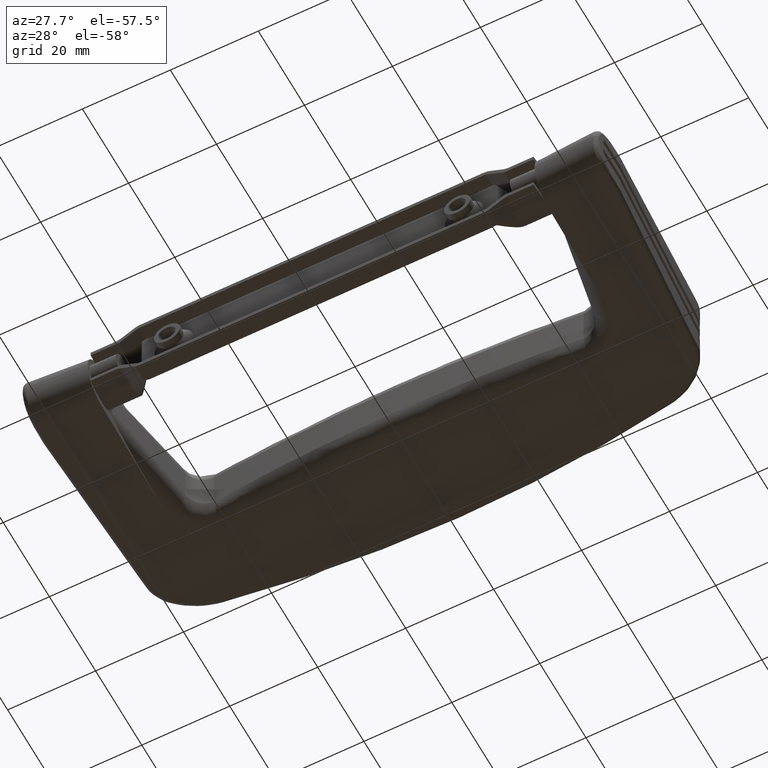
[diagram: clean part render]
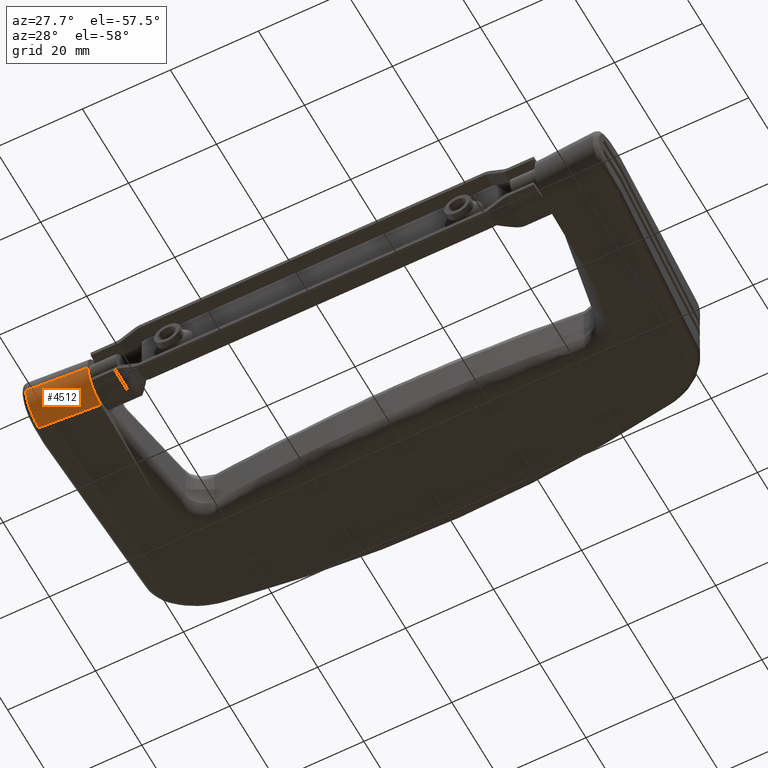
[diagram: same view with one face highlighted and labeled with its STEP entity id]
A machine part, auxiliary view. The second image highlights one B-rep face of the part: STEP entity #4512.
In plain terms, the highlighted cylindrical surface (edge-blend (fillet) strip) has radius 6 mm, axis along (0.9977, 0.0679, -0.0036).
Its self-contained STEP definition (entity closure, byte-faithful):
#209=ELLIPSE('',#4913,6.00966054518926,6.);
#212=ELLIPSE('',#4921,6.01390626884909,6.);
#540=FACE_OUTER_BOUND('',#810,.T.);
#810=EDGE_LOOP('',(#3620,#3621,#3622,#3623));
#1098=LINE('',#7542,#1424);
#1153=LINE('',#8101,#1479);
#1424=VECTOR('',#5631,13.7317526472054);
#1479=VECTOR('',#5866,13.6637249930231);
#1972=VERTEX_POINT('',#7529);
#1976=VERTEX_POINT('',#7540);
#2029=VERTEX_POINT('',#8057);
#2032=VERTEX_POINT('',#8100);
#2488=EDGE_CURVE('',#1972,#1976,#1098,.T.);
#2592=EDGE_CURVE('',#1972,#2029,#209,.T.);
#2598=EDGE_CURVE('',#2032,#2029,#1153,.T.);
#2600=EDGE_CURVE('',#1976,#2032,#212,.T.);
#3620=ORIENTED_EDGE('',*,*,#2592,.F.);
#3621=ORIENTED_EDGE('',*,*,#2488,.T.);
#3622=ORIENTED_EDGE('',*,*,#2600,.T.);
#3623=ORIENTED_EDGE('',*,*,#2598,.T.);
#4348=CYLINDRICAL_SURFACE('',#4920,6.);
#4512=ADVANCED_FACE('',(#540),#4348,.T.);
#4913=AXIS2_PLACEMENT_3D('',#8059,#5850,#5851);
#4920=AXIS2_PLACEMENT_3D('',#8103,#5868,#5869);
#4921=AXIS2_PLACEMENT_3D('',#8104,#5870,#5871);
#5631=DIRECTION('',(0.997687647890171,0.0678699080197395,-0.00361010149041172));
#5850=DIRECTION('center_axis',(-0.9999360463171,-0.0112934678272418,0.000600716373790888));
#5851=DIRECTION('ref_axis',(0.011309433041788,-0.998524464193322,0.0531130034145336));
#5866=DIRECTION('',(-0.997687647890171,-0.0678699080197395,0.00361010149041172));
#5868=DIRECTION('center_axis',(0.997687647890171,0.0678699080197395,-0.00361010149041172));
#5869=DIRECTION('ref_axis',(0.0467683621164662,-0.724096576672183,-0.688111086930424));
#5870=DIRECTION('center_axis',(-1.,0.,0.));
#5871=DIRECTION('ref_axis',(0.,-0.998588327594572,0.0531164004039848));
#7529=CARTESIAN_POINT('',(-64.5,5.7631958880646,-6.55655297276938));
#7540=CARTESIAN_POINT('',(-50.8,6.69516867718025,-6.60612599346702));
#7542=CARTESIAN_POINT('',(-33.2992673050021,7.88569471085358,-6.66945184632198));
#8057=CARTESIAN_POINT('',(-64.4321296497073,0.072644241516506,-0.563795073523175));
#8059=CARTESIAN_POINT('Origin',(-64.5,6.08189429048841,-0.565023007201939));
#8100=CARTESIAN_POINT('',(-50.8,1.,-0.613122507485064));
#8101=CARTESIAN_POINT('',(-32.8920452032462,2.21822821746624,-0.677921880754546));
#8103=CARTESIAN_POINT('Origin',(-33.2992673050021,8.20439311327738,-0.677921880754546));
#8104=CARTESIAN_POINT('Origin',(-50.8,7.01386707960405,-0.61459602789958));